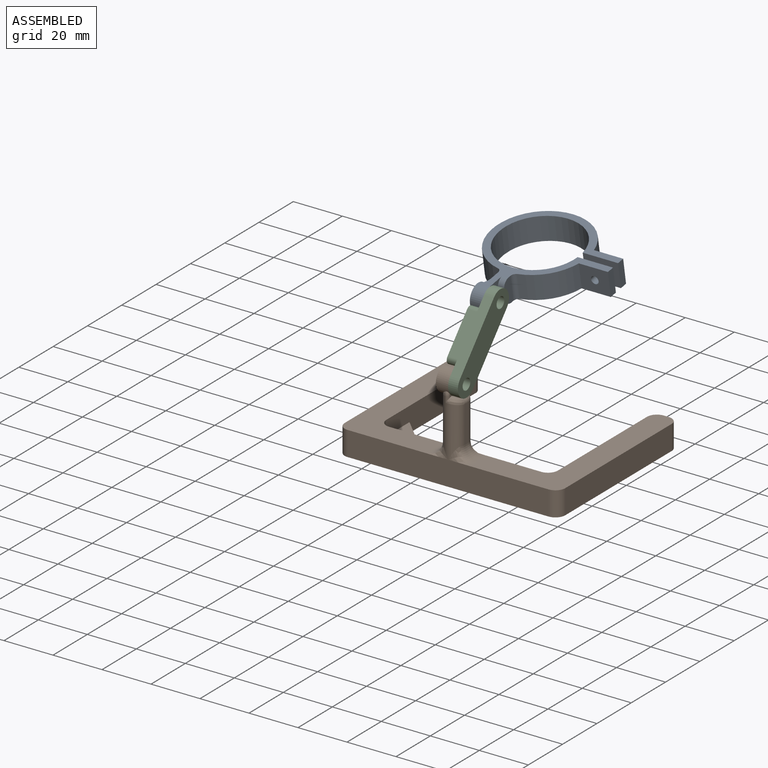
[diagram: assembled view]
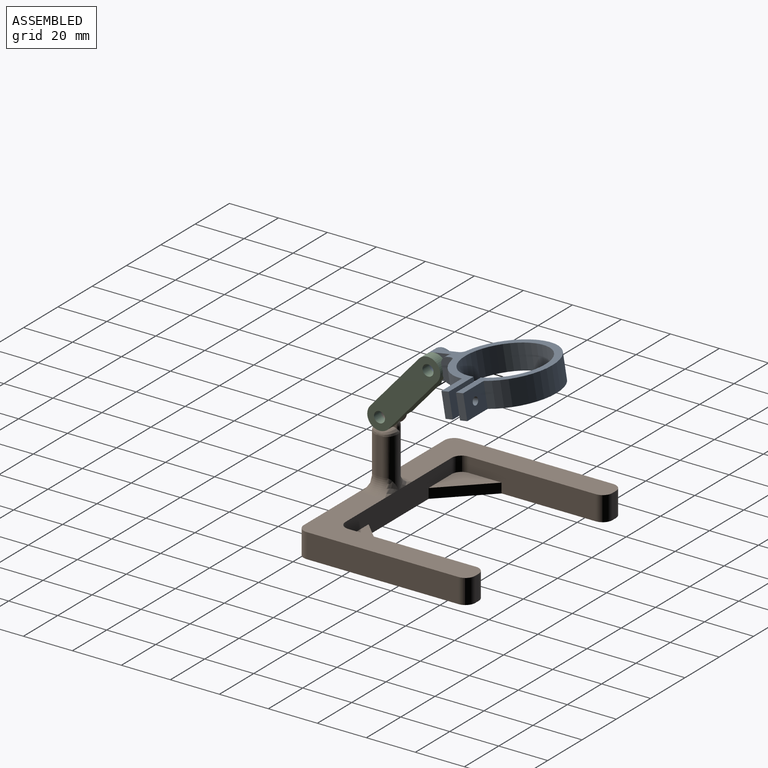
[diagram: assembled view, second angle]
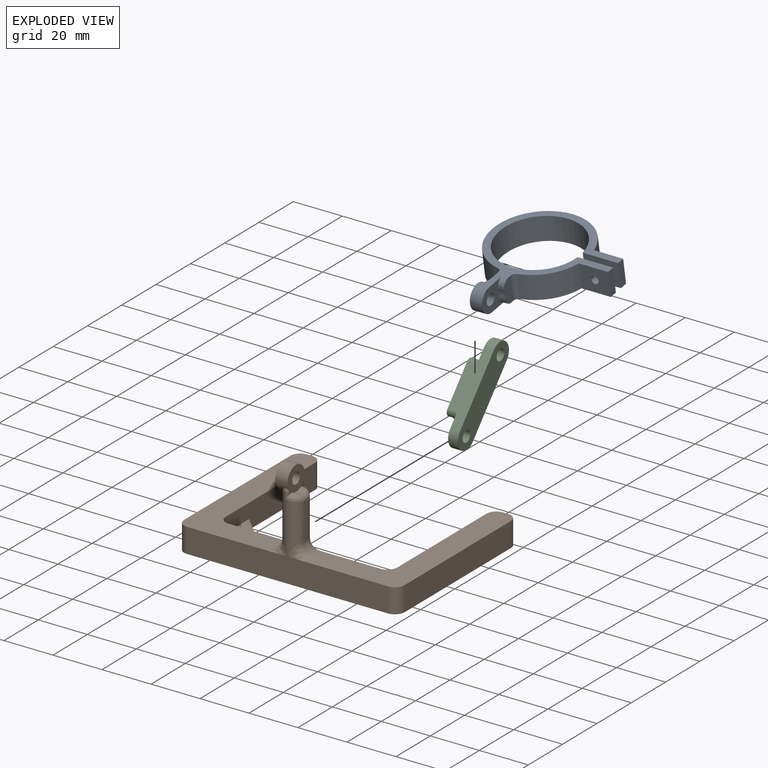
[diagram: exploded view]
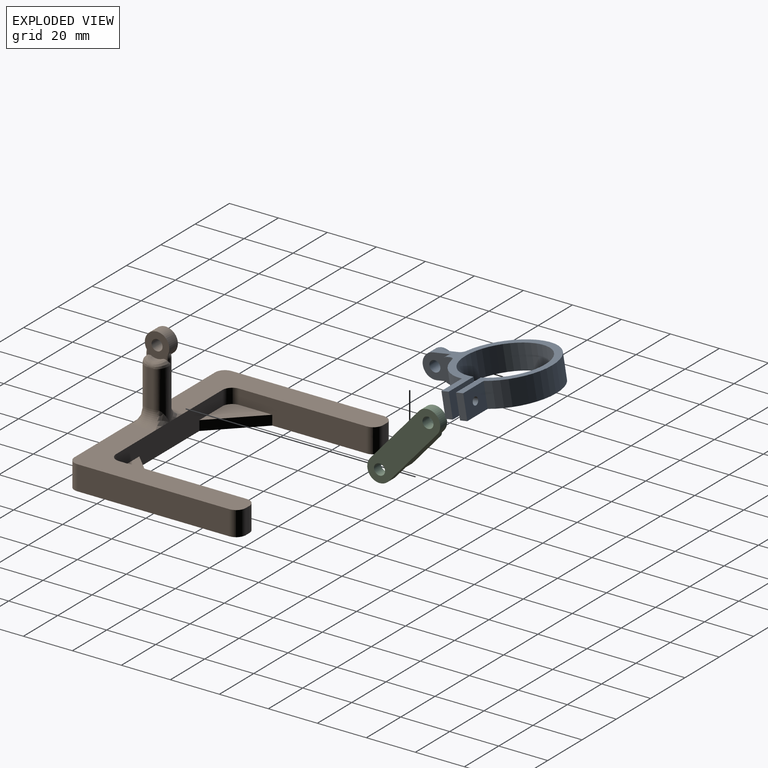
[diagram: exploded view, second angle]
ASSEMBLY  parts=3 mates=2
PART A: 25 faces, bbox 50.4x54.5x18.2 mm
  f0: plane 10x4.23mm, normal (-1,0,0), area 37.9mm2, adj f11,f12,f19,f22,f23,f24
  f1: cylinder r=19.5mm len=14.89mm, axis (0,0,-1), area 219.8mm2, adj f2,f11,f12,f22
  f2: plane 11.9x10mm, normal (0,1,0), area 111.5mm2, adj f1,f3,f11,f12,f14
  f3: plane 10x3mm, normal (-1,0,0), area 30mm2, adj f2,f4,f11,f12
  f4: plane 14.44x10mm, normal (0,-1,0), area 136.9mm2, adj f3,f5,f11,f12,f14
  f5: cylinder r=16.5mm len=33mm, axis (0,0,-1), area 1006.7mm2, adj f4,f6,f11,f12
  f6: plane 14.44x10mm, normal (0,1,0), area 136.9mm2, adj f5,f7,f11,f12,f13
  f7: plane 10x3mm, normal (-1,0,0), area 30mm2, adj f6,f8,f11,f12
  f8: plane 11.9x10mm, normal (0,-1,0), area 111.5mm2, adj f7,f9,f11,f12,f13
  f9: cylinder r=19.5mm len=38.57mm, axis (0,0,-1), area 832.4mm2, adj f8,f11,f12,f21
  f10: plane 10x4.08mm, normal (1,0,0), area 26.3mm2, adj f11,f12,f20,f21
  f11: plane 50.37x49.5mm, normal (0,0,1), area 438.2mm2, adj f0,f1,f2,f3,f4,f5,f6,f7
  f12: plane 50.37x49.5mm, normal (0,0,-1), area 438.2mm2, adj f0,f1,f2,f3,f4,f5,f6,f7
  f13: cylinder r=1.55mm len=3.1mm, axis (0,-1,0), area 29.2mm2, adj f6,f8
  f14: cylinder r=1.55mm len=3.1mm, axis (0,-1,0), area 29.2mm2, adj f2,f4
  f15: cylinder r=2.25mm len=5mm, axis (-1,0,0), area 70.7mm2, adj f17,f18
  f16: cylinder r=5mm len=10mm, axis (-1,0,0), area 86.4mm2, adj f11,f12,f17,f18,f20
  f17: plane 12.75x10mm, normal (-1,0,0), area 75.2mm2, adj f11,f12,f15,f16,f19,f23,f24
  f18: plane 10x10mm, normal (1,0,0), area 62.6mm2, adj f15,f16
  f19: cylinder r=5mm len=2.5mm, axis (1,0,0), area 6.3mm2, adj f0,f17,f23,f24
  f20: torus R=7mm, axis (1,0,0), area 40mm2, adj f10,f11,f12,f16
  f21: cylinder r=2mm len=10mm, axis (0,0,-1), area 27.2mm2, adj f9,f10,f11,f12
  f22: cylinder r=2mm len=10mm, axis (0,0,-1), area 27.2mm2, adj f0,f1,f11,f12
  f23: cylinder r=3mm len=3.75mm, axis (1,0,0), area 13.7mm2, adj f0,f11,f17,f19
  f24: cylinder r=3mm len=3.75mm, axis (1,0,0), area 13.7mm2, adj f0,f12,f17,f19
PART B: 59 faces, bbox 92.1x74.2x44.1 mm
  f0: plane 64.12x12.12mm, normal (0,1,0), area 512mm2, adj f2,f8,f9,f15,f21,f25,f30,f55
  f1: plane 52x10mm, normal (-1,0,0), area 466mm2, adj f2,f8,f9,f18,f57,f58
  f2: cylinder r=4mm len=6mm, axis (0,0,-1), area 37.7mm2, adj f0,f1,f9,f57
  f3: plane 52x10mm, normal (1,0,0), area 466mm2, adj f8,f15,f21,f24,f55,f56
  f4: sphere r=4mm, area 2.3mm2, adj f6,f44,f52
  f5: sphere r=4mm, area 2.3mm2, adj f7,f44,f53
  f6: cylinder r=4mm len=23mm, axis (0,0,1), area 227.2mm2, adj f4,f16,f17,f28,f29,f33,f34,f44
  f7: cylinder r=4mm len=23mm, axis (0,0,1), area 227.2mm2, adj f5,f16,f17,f25,f26,f30,f31,f44
  f8: plane 90x70mm, normal (0,0,-1), area 2307.1mm2, adj f0,f1,f3,f10,f11,f12,f13,f14
  f9: plane 70x36.94mm, normal (0,0,1), area 955.6mm2, adj f0,f1,f2,f10,f13,f14,f18,f19
  f10: plane 84.12x12.12mm, normal (0,-1,0), area 820mm2, adj f8,f9,f15,f20,f22,f29,f33
  f11: plane 62x10mm, normal (-1,0,0), area 620mm2, adj f8,f15,f22,f23
  f12: plane 10x2mm, normal (0,1,0), area 20mm2, adj f8,f15,f23,f24
  f13: plane 10x2mm, normal (0,1,0), area 20mm2, adj f8,f9,f18,f19
  f14: plane 62x10mm, normal (1,0,0), area 620mm2, adj f8,f9,f19,f20
  f15: plane 70x36.94mm, normal (0,0,1), area 955.6mm2, adj f0,f3,f10,f11,f12,f21,f22,f23
  f16: plane 17.1x2mm, normal (-1,0,0), area 34.1mm2, adj f6,f7,f27,f44
  f17: plane 15.07x2mm, normal (1,0,0), area 30mm2, adj f6,f7,f32,f49
  f18: cylinder r=4mm len=10mm, axis (0,0,-1), area 62.8mm2, adj f1,f8,f9,f13
  f19: cylinder r=4mm len=10mm, axis (0,0,1), area 62.8mm2, adj f8,f9,f13,f14
  f20: cylinder r=4mm len=10mm, axis (0,0,-1), area 62.8mm2, adj f8,f9,f10,f14
  f21: cylinder r=4mm len=6mm, axis (0,0,1), area 37.7mm2, adj f0,f3,f15,f55
  f22: cylinder r=4mm len=10mm, axis (0,0,1), area 62.8mm2, adj f8,f10,f11,f15
  f23: cylinder r=4mm len=10mm, axis (0,0,1), area 62.8mm2, adj f8,f11,f12,f15
  f24: cylinder r=4mm len=10mm, axis (0,0,-1), area 62.8mm2, adj f3,f8,f12,f15
  f25: bspline ~8.11x5.04mm, area 11mm2, adj f0,f7,f26
  f26: torus R=9mm, axis (0,0,-1), area 21mm2, adj f7,f15,f25,f27
  f27: cylinder r=5mm len=5mm, axis (0,1,0), area 15.7mm2, adj f15,f16,f26,f28
  f28: torus R=9mm, axis (0,0,-1), area 21mm2, adj f6,f15,f27,f29
  f29: bspline ~8.11x5.04mm, area 11mm2, adj f6,f10,f28
  f30: bspline ~8.11x5.04mm, area 11mm2, adj f0,f7,f31
  f31: torus R=9mm, axis (0,0,-1), area 21mm2, adj f7,f9,f30,f32
  f32: cylinder r=5mm len=5mm, axis (0,-1,0), area 15.7mm2, adj f9,f17,f31,f34
  f33: bspline ~8.11x5.04mm, area 11mm2, adj f6,f10,f34
  f34: torus R=9mm, axis (0,0,-1), area 21mm2, adj f6,f9,f32,f33
  f35: cylinder r=2.5mm len=5mm, axis (0,0,-1), area 47.1mm2, adj f8,f36
  f36: plane 5x5mm, normal (0,0,-1), area 19.6mm2, adj f35
  f37: cylinder r=2.5mm len=5mm, axis (0,0,-1), area 47.1mm2, adj f8,f38
  f38: plane 5x5mm, normal (0,0,-1), area 19.6mm2, adj f37
  f39: cylinder r=2.5mm len=5mm, axis (0,0,-1), area 47.1mm2, adj f8,f40
  f40: plane 5x5mm, normal (0,0,-1), area 19.6mm2, adj f39
  f41: cylinder r=2.5mm len=5mm, axis (0,0,-1), area 47.1mm2, adj f8,f42
  f42: plane 5x5mm, normal (0,0,-1), area 19.6mm2, adj f41
  f43: cylinder r=2.25mm len=5mm, axis (1,0,0), area 70.7mm2, adj f45,f46
  f44: cylinder r=5mm len=10mm, axis (1,0,0), area 122.5mm2, adj f4,f5,f6,f7,f16,f45,f46,f52
  f45: plane 10x10mm, normal (-1,0,0), area 62.6mm2, adj f43,f44
  f46: plane 10.12x10.12mm, normal (1,0,0), area 64mm2, adj f43,f44,f47,f48,f50,f51,f52,f53
  f47: cylinder r=5mm len=4.29mm, axis (-1,0,0), area 5.9mm2, adj f46,f48,f49,f50
  f48: bspline ~6.16x4.91mm, area 20mm2, adj f6,f46,f47,f49,f51
  f49: torus R=7mm, axis (-1,0,0), area 5.2mm2, adj f17,f47,f48,f50
  f50: bspline ~6.16x4.91mm, area 20mm2, adj f7,f46,f47,f49,f54
  f51: cylinder r=1mm len=2.38mm, axis (0,0,1), area 2.8mm2, adj f6,f46,f48,f52
  f52: torus R=2.83mm, axis (-1,0,0), area 2.7mm2, adj f4,f44,f46,f51
  f53: torus R=2.83mm, axis (-1,0,0), area 2.7mm2, adj f5,f44,f46,f54
  f54: cylinder r=1mm len=2.38mm, axis (0,0,1), area 2.8mm2, adj f7,f46,f50,f53
  f55: plane 17.5x17.5mm, normal (0,0,1), area 149.7mm2, adj f0,f3,f21,f56
  f56: plane 17.5x17.5mm, normal (0.71,0.71,0), area 99mm2, adj f0,f3,f8,f55
  f57: plane 17.5x17.5mm, normal (0,0,1), area 149.7mm2, adj f0,f1,f2,f58
  f58: plane 17.5x17.5mm, normal (-0.71,0.71,0), area 99mm2, adj f0,f1,f8,f57
PART C: 16 faces, bbox 10x40x8 mm
  f0: plane 30x8mm, normal (1,0,0), area 189.4mm2, adj f4,f5,f6,f8,f9,f11,f13,f15
  f1: cylinder r=5mm len=4.29mm, axis (0,0,-1), area 17.7mm2, adj f4,f8,f14,f15
  f2: plane 30x8mm, normal (-1,0,0), area 189.4mm2, adj f4,f5,f6,f8,f9,f11,f12,f14
  f3: cylinder r=5mm len=4.29mm, axis (0,0,-1), area 17.7mm2, adj f4,f11,f12,f13
  f4: plane 21.35x10mm, normal (0,0,1), area 205.4mm2, adj f0,f1,f2,f3,f12,f13,f14,f15
  f5: plane 40x10mm, normal (0,0,-1), area 346.7mm2, adj f0,f2,f6,f7,f9,f10
  f6: cylinder r=5mm len=10mm, axis (0,0,-1), area 62.8mm2, adj f0,f2,f5,f8
  f7: cylinder r=2.25mm len=4.5mm, axis (0,0,-1), area 56.5mm2, adj f5,f8
  f8: plane 11.32x10mm, normal (0,0,1), area 70.7mm2, adj f0,f1,f2,f6,f7,f14,f15
  f9: cylinder r=5mm len=10mm, axis (0,0,-1), area 62.8mm2, adj f0,f2,f5,f11
  f10: cylinder r=2.25mm len=4.5mm, axis (0,0,-1), area 56.5mm2, adj f5,f11
  f11: plane 11.32x10mm, normal (0,0,1), area 70.7mm2, adj f0,f2,f3,f9,f10,f12,f13
  f12: cylinder r=2mm len=4mm, axis (0,0,-1), area 16.1mm2, adj f2,f3,f4,f11
  f13: cylinder r=2mm len=4mm, axis (0,0,-1), area 16.1mm2, adj f0,f3,f4,f11
  f14: cylinder r=2mm len=4mm, axis (0,0,-1), area 16.1mm2, adj f1,f2,f4,f8
  f15: cylinder r=2mm len=4mm, axis (0,0,-1), area 16.1mm2, adj f0,f1,f4,f8
PLACE A rot(axis=(0,-0.08,1),180deg) t=(14.39,-34,23.53)mm
PLACE B t=(14.39,-53.79,-34.02)mm fixed
PLACE C rot(axis=(-0.67,-0.3,0.67),146.1deg) t=(18.39,-99.78,-51.39)mm
MATE revolute C.f1 <-> B.f49  axis (-1,0,0) through (14.39,-53.79,0.98)mm
MATE revolute A.f15 <-> C.f3  axis (1,0,0) through (14.39,-34,23.53)mm
